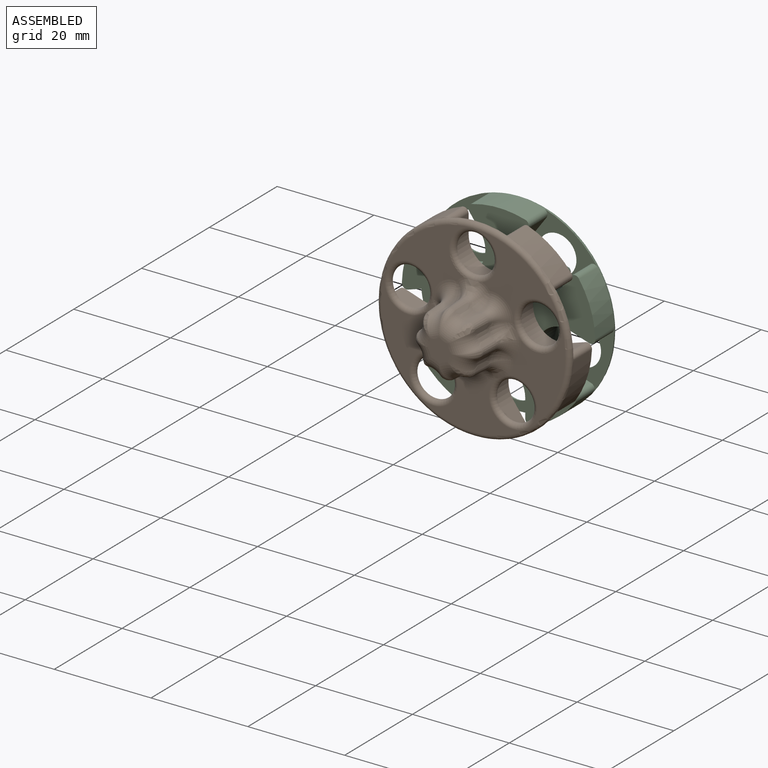
[diagram: assembled view]
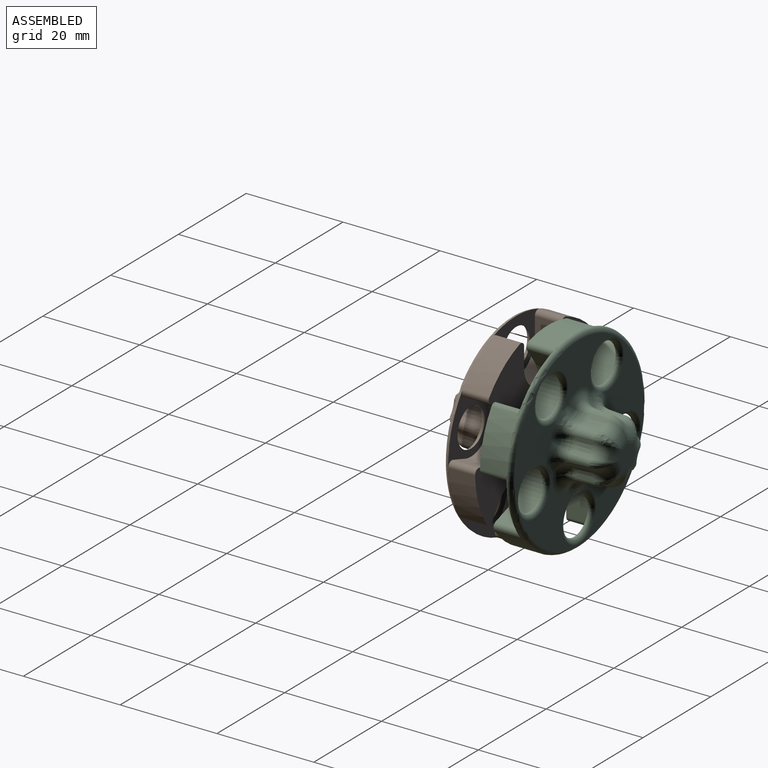
[diagram: assembled view, second angle]
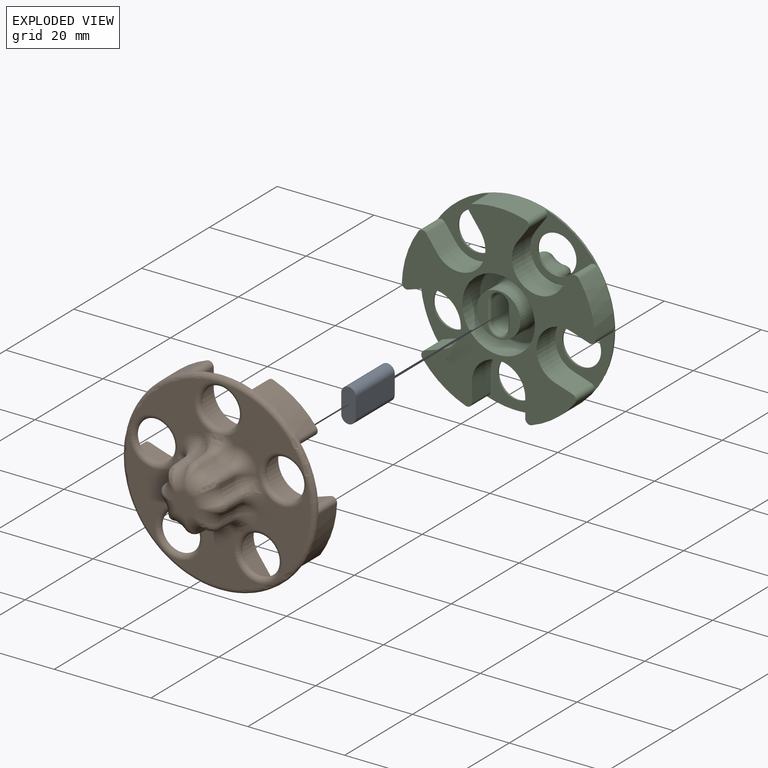
[diagram: exploded view]
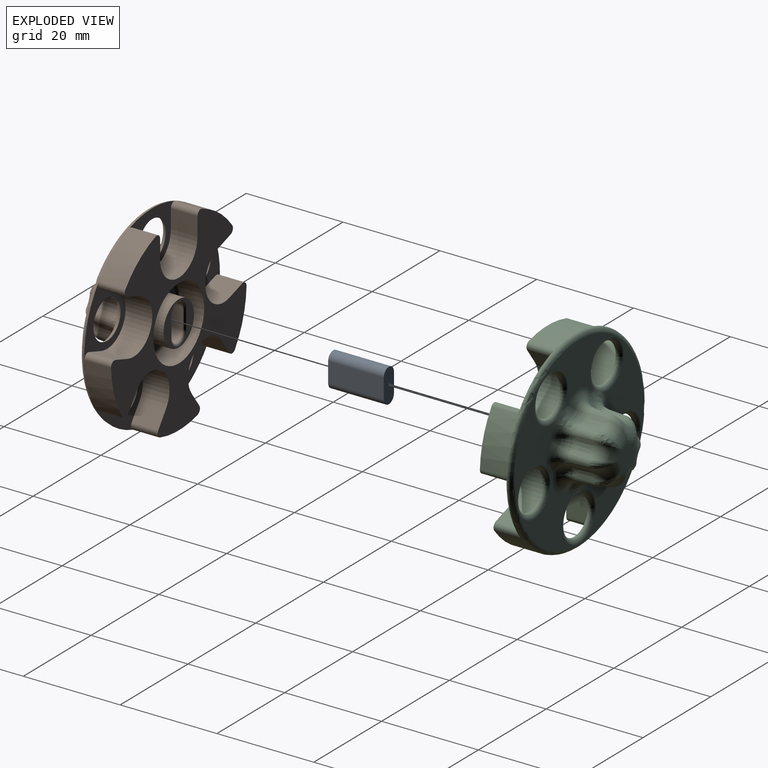
[diagram: exploded view, second angle]
ASSEMBLY  parts=3 mates=2
PART A: 6 faces, bbox 3x11.5x7 mm
  f0: plane 7x3mm, normal (0,-1,0), area 19.1mm2, adj f1,f2,f3,f4
  f1: plane 11.5x4mm, normal (-1,0,0), area 46mm2, adj f0,f2,f3,f5
  f2: cylinder r=1.5mm len=11.5mm, axis (0,1,0), area 54.2mm2, adj f0,f1,f4,f5
  f3: cylinder r=1.5mm len=11.5mm, axis (0,1,0), area 54.2mm2, adj f0,f1,f4,f5
  f4: plane 11.5x4mm, normal (1,0,0), area 46mm2, adj f0,f2,f3,f5
  f5: plane 7x3mm, normal (0,1,0), area 19.1mm2, adj f1,f2,f3,f4
PART B: 119 faces, bbox 43.3x16.5x43.3 mm
  f0: plane 38.02x38.02mm, normal (0,-1,0), area 464.3mm2, adj f1,f101,f102,f103,f104,f105,f106,f107
  f1: torus R=4.99mm, axis (0,-1,0), area 42.4mm2, adj f0,f2,f49
  f2: bspline ~3.95x3.83mm, area 6.9mm2, adj f1,f3,f101,f117
  f3: cone r=1.55mm half-angle=3deg, axis (0,1,0), area 9.6mm2, adj f2,f4,f45,f47,f101,f117
  f4: bspline ~4.27x3.32mm, area 5.5mm2, adj f3,f5,f44
  f5: torus R=6.21mm, axis (0,-1,0), area 14mm2, adj f4,f6,f43,f47
  f6: bspline ~3.38x3.37mm, area 4.6mm2, adj f5,f7,f42
  f7: cone r=1.55mm half-angle=3deg, axis (0,1,0), area 9.6mm2, adj f6,f8,f9,f47,f114,f116
  f8: bspline ~4.2x4.1mm, area 8.6mm2, adj f7,f114,f115,f116
  f9: cone r=2.36mm half-angle=3deg, axis (0,-1,0), area 11.4mm2, adj f7,f10,f41,f42
  f10: cone r=1.55mm half-angle=3deg, axis (0,1,0), area 9.6mm2, adj f9,f11,f39,f113
  f11: bspline ~3.02x2.67mm, area 3.8mm2, adj f10,f12,f42
  f12: torus R=6.21mm, axis (0,-1,0), area 14mm2, adj f11,f13,f14,f39,f43
  f13: bspline ~2.03x0.58mm, area 0.1mm2, adj f12,f42
  f14: bspline ~3.38x3.37mm, area 4.6mm2, adj f12,f15,f38
  f15: cone r=1.55mm half-angle=3deg, axis (0,1,0), area 9.6mm2, adj f14,f16,f17,f39,f110,f112
  f16: bspline ~4.2x4.1mm, area 8.6mm2, adj f15,f110,f111,f112
  f17: cone r=2.36mm half-angle=3deg, axis (0,-1,0), area 11.4mm2, adj f15,f18,f37,f38
  f18: cone r=1.55mm half-angle=3deg, axis (0,1,0), area 9.6mm2, adj f17,f19,f34,f35,f107,f109
  f19: bspline ~4.27x3.32mm, area 5.2mm2, adj f18,f20,f38
  f20: torus R=6.21mm, axis (0,-1,0), area 14mm2, adj f19,f21,f35,f43
  f21: bspline ~3.38x3.37mm, area 4.6mm2, adj f20,f22,f33
  f22: torus R=6.21mm, axis (0,-1,0), area 14mm2, adj f21,f23,f32,f43
  f23: cone r=2.36mm half-angle=3deg, axis (0,-1,0), area 11.4mm2, adj f22,f24,f31,f33
  f24: cone r=1.55mm half-angle=3deg, axis (0,1,0), area 9.6mm2, adj f23,f25,f26,f32,f103,f105
  f25: bspline ~4.88x3.08mm, area 9mm2, adj f24,f103,f104,f105
  f26: cone r=2.36mm half-angle=3deg, axis (0,-1,0), area 11.4mm2, adj f24,f27,f29,f30
  f27: cone r=1.55mm half-angle=3deg, axis (0,1,0), area 9.6mm2, adj f26,f28,f45,f102
  f28: bspline ~3.38x3.37mm, area 4.6mm2, adj f27,f30,f44
  f29: bspline ~3.03x2.86mm, area 5.2mm2, adj f26,f102,f103
  f30: torus R=6.21mm, axis (0,-1,0), area 14mm2, adj f26,f28,f32,f43
  f31: bspline ~3.03x2.86mm, area 5.2mm2, adj f23,f105,f106
  f32: bspline ~4.27x3.32mm, area 5.4mm2, adj f22,f24,f30
  f33: cone r=1.55mm half-angle=3deg, axis (0,1,0), area 9.6mm2, adj f21,f23,f35,f106
  f34: bspline ~3.95x3.83mm, area 6.9mm2, adj f18,f107,f108,f109
  f35: cone r=2.36mm half-angle=3deg, axis (0,-1,0), area 11.4mm2, adj f18,f20,f33,f36
  f36: bspline ~3.03x2.86mm, area 5.2mm2, adj f35,f106,f107
  f37: bspline ~3.03x2.86mm, area 5.2mm2, adj f17,f109,f110
  f38: torus R=6.21mm, axis (0,-1,0), area 14mm2, adj f14,f17,f19,f43
  f39: cone r=2.36mm half-angle=3deg, axis (0,-1,0), area 11.4mm2, adj f10,f12,f15,f40
  f40: bspline ~3.03x2.86mm, area 5.2mm2, adj f39,f112,f113
  f41: bspline ~3.03x2.86mm, area 5.2mm2, adj f9,f113,f114
  f42: torus R=6.21mm, axis (0,-1,0), area 14mm2, adj f6,f9,f11,f13,f43
  f43: plane 4.83x4.83mm, normal (0,-1,0), area 15.8mm2, adj f5,f12,f20,f22,f30,f38,f42,f44
  f44: torus R=6.21mm, axis (0,-1,0), area 14mm2, adj f4,f28,f43,f45
  f45: cone r=2.36mm half-angle=3deg, axis (0,-1,0), area 11.4mm2, adj f3,f27,f44,f46
  f46: bspline ~3.03x2.86mm, area 5.2mm2, adj f45,f101,f102
  f47: cone r=2.36mm half-angle=3deg, axis (0,-1,0), area 11.4mm2, adj f3,f5,f7,f48
  f48: bspline ~3.03x2.86mm, area 5.2mm2, adj f47,f116,f117
  f49: cylinder r=4mm len=8mm, axis (0,1,0), area 0.3mm2, adj f1,f50
  f50: plane 13.48x12.19mm, normal (0,1,0), area 61.3mm2, adj f49,f51,f96,f97,f98,f99,f100
  f51: cylinder r=0.99mm len=5.5mm, axis (0,1,0), area 10.5mm2, adj f50,f52,f96,f100
  f52: plane 39.98x38.86mm, normal (0,1,0), area 522mm2, adj f51,f53,f56,f57,f58,f59,f60,f63
  f53: cylinder r=0.99mm len=5.5mm, axis (0,1,0), area 10.5mm2, adj f52,f54,f56,f100
  f54: plane 13.66x11.5mm, normal (0,1,0), area 61.3mm2, adj f53,f55,f56,f57,f58,f59,f100
  f55: cylinder r=4mm len=8mm, axis (0,1,0), area 0.3mm2, adj f54,f104
  f56: plane 5.5x3.87mm, normal (-1,0,0), area 21.3mm2, adj f52,f53,f54,f57
  f57: cylinder r=5.5mm len=11mm, axis (0,1,0), area 95mm2, adj f52,f54,f56,f58
  f58: plane 5.5x3.87mm, normal (1,0,0), area 21.3mm2, adj f52,f54,f57,f59
  f59: cylinder r=0.99mm len=5.5mm, axis (0,1,0), area 10.5mm2, adj f52,f54,f58,f100
  f60: cylinder r=0.99mm len=5.5mm, axis (0,1,0), area 10.5mm2, adj f52,f61,f63,f100
  f61: plane 13.48x12.19mm, normal (0,1,0), area 61.3mm2, adj f60,f62,f63,f64,f65,f66,f100
  f62: cylinder r=4mm len=8mm, axis (0,1,0), area 0.3mm2, adj f61,f108
  f63: plane 5.5x3.68mm, normal (-0.31,0,-0.95), area 21.3mm2, adj f52,f60,f61,f64
  f64: cylinder r=5.5mm len=10.73mm, axis (0,1,0), area 95mm2, adj f52,f61,f63,f65
  f65: plane 5.5x3.68mm, normal (0.31,0,0.95), area 21.3mm2, adj f52,f61,f64,f66
  f66: cylinder r=0.99mm len=5.5mm, axis (0,1,0), area 10.5mm2, adj f52,f61,f65,f100
  f67: cylinder r=0.99mm len=5.5mm, axis (0,1,0), area 10.5mm2, adj f52,f68,f70,f100
  f68: plane 13.84x13.4mm, normal (0,1,0), area 61.3mm2, adj f67,f69,f70,f71,f72,f73,f100
  f69: cylinder r=4mm len=8mm, axis (0,1,0), area 0.3mm2, adj f68,f111
  f70: plane 5.5x3.13mm, normal (0.81,0,-0.59), area 21.3mm2, adj f52,f67,f68,f71
  f71: cylinder r=5.5mm len=9.95mm, axis (0,1,0), area 95mm2, adj f52,f68,f70,f72
  f72: plane 5.5x3.13mm, normal (-0.81,0,0.59), area 21.3mm2, adj f52,f68,f71,f73
  f73: cylinder r=0.99mm len=5.5mm, axis (0,1,0), area 10.5mm2, adj f52,f68,f72,f100
  f74: cylinder r=0.99mm len=5.5mm, axis (0,1,0), area 10.5mm2, adj f52,f75,f77,f100
  f75: plane 13.84x13.4mm, normal (0,1,0), area 61.3mm2, adj f74,f76,f77,f78,f79,f80,f100
  f76: cylinder r=4mm len=8mm, axis (0,1,0), area 0.3mm2, adj f75,f115
  f77: plane 5.5x3.13mm, normal (0.81,0,0.59), area 21.3mm2, adj f52,f74,f75,f78
  f78: cylinder r=5.5mm len=9.95mm, axis (0,1,0), area 95mm2, adj f52,f75,f77,f79
  f79: plane 5.5x3.13mm, normal (-0.81,0,-0.59), area 21.3mm2, adj f52,f75,f78,f80
  f80: cylinder r=0.99mm len=5.5mm, axis (0,1,0), area 10.5mm2, adj f52,f75,f79,f100
  f81: cylinder r=7.5mm len=15mm, axis (0,1,0), area 235.6mm2, adj f52,f82
  f82: torus R=7mm, axis (0,1,0), area 36.1mm2, adj f81,f83
  f83: plane 14x14mm, normal (0,1,0), area 75.4mm2, adj f82,f84
  f84: torus R=5mm, axis (0,1,0), area 23.1mm2, adj f83,f85
  f85: cylinder r=4.5mm len=9mm, axis (0,1,0), area 141.4mm2, adj f84,f86
  f86: plane 9x9mm, normal (0,1,0), area 28.6mm2, adj f85,f87,f93,f94,f95
  f87: torus R=2.3mm, axis (0,-1,0), area 4.9mm2, adj f86,f88,f93,f95
  f88: cylinder r=1.8mm len=5mm, axis (0,1,0), area 28.3mm2, adj f87,f89,f91,f92
  f89: plane 5x4mm, normal (1,0,0), area 20mm2, adj f88,f90,f92,f95
  f90: cylinder r=1.8mm len=5mm, axis (0,1,0), area 28.3mm2, adj f89,f91,f92,f94
  f91: plane 5x4mm, normal (-1,0,0), area 20mm2, adj f88,f90,f92,f93
  f92: plane 7.6x3.6mm, normal (0,1,0), area 24.6mm2, adj f88,f89,f90,f91
  f93: cylinder r=0.5mm len=4mm, axis (0,0,-1), area 3.1mm2, adj f86,f87,f91,f94
  f94: torus R=2.3mm, axis (0,-1,0), area 4.9mm2, adj f86,f90,f93,f95
  f95: cylinder r=0.5mm len=4mm, axis (0,0,1), area 3.1mm2, adj f86,f87,f89,f94
  f96: plane 5.5x3.68mm, normal (0.31,0,-0.95), area 21.3mm2, adj f50,f51,f52,f97
  f97: cylinder r=5.5mm len=10.73mm, axis (0,1,0), area 95mm2, adj f50,f52,f96,f98
  f98: plane 5.5x3.68mm, normal (-0.31,0,0.95), area 21.3mm2, adj f50,f52,f97,f99
  f99: cylinder r=0.99mm len=5.5mm, axis (0,1,0), area 10.5mm2, adj f50,f52,f98,f100
  f100: cylinder r=20mm len=40mm, axis (0,1,0), area 309.2mm2, adj f50,f51,f52,f53,f54,f59,f60,f61
  f101: torus R=4.39mm, axis (0,-1,0), area 1mm2, adj f0,f2,f3,f46
  f102: torus R=4.39mm, axis (0,-1,0), area 21.1mm2, adj f0,f27,f29,f46
  f103: torus R=4.39mm, axis (0,-1,0), area 5.2mm2, adj f0,f24,f25,f29
  f104: torus R=4.99mm, axis (0,-1,0), area 42.2mm2, adj f0,f25,f55
  f105: torus R=4.39mm, axis (0,-1,0), area 5.2mm2, adj f0,f24,f25,f31
  f106: torus R=4.39mm, axis (0,-1,0), area 21.1mm2, adj f0,f31,f33,f36
  f107: torus R=4.39mm, axis (0,-1,0), area 1mm2, adj f0,f18,f34,f36
  f108: torus R=4.99mm, axis (0,-1,0), area 42.4mm2, adj f0,f34,f62
  f109: torus R=4.39mm, axis (0,-1,0), area 12.6mm2, adj f0,f18,f34,f37
  f110: torus R=4.39mm, axis (0,-1,0), area 8.5mm2, adj f0,f15,f16,f37
  f111: torus R=4.99mm, axis (0,-1,0), area 42.1mm2, adj f0,f16,f69
  f112: torus R=4.39mm, axis (0,-1,0), area 2.6mm2, adj f0,f15,f16,f40
  f113: torus R=4.39mm, axis (0,-1,0), area 21.1mm2, adj f0,f10,f40,f41
  f114: torus R=4.39mm, axis (0,-1,0), area 2.6mm2, adj f0,f7,f8,f41
  f115: torus R=4.99mm, axis (0,-1,0), area 42.1mm2, adj f0,f8,f76
  f116: torus R=4.39mm, axis (0,-1,0), area 8.5mm2, adj f0,f7,f8,f48
  f117: torus R=4.39mm, axis (0,-1,0), area 12.6mm2, adj f0,f2,f3,f48
  f118: torus R=19.01mm, axis (0,-1,0), area 191.9mm2, adj f0,f100
PART C: same geometry as B
PLACE A rot(axis=(1,0,0),180deg) t=(26.02,3.02,50.5)mm
PLACE B t=(26.02,1.52,50.5)mm
PLACE C rot(axis=(1,0,0),180deg) t=(26.02,2.52,50.5)mm
MATE fastened A.f5 <-> B.f81  axis (0,-1,0) through (26.02,-3.48,50.5)mm
MATE slider C.f81 <-> A.f0  axis (0,-1,0) through (26.02,8.02,50.5)mm
